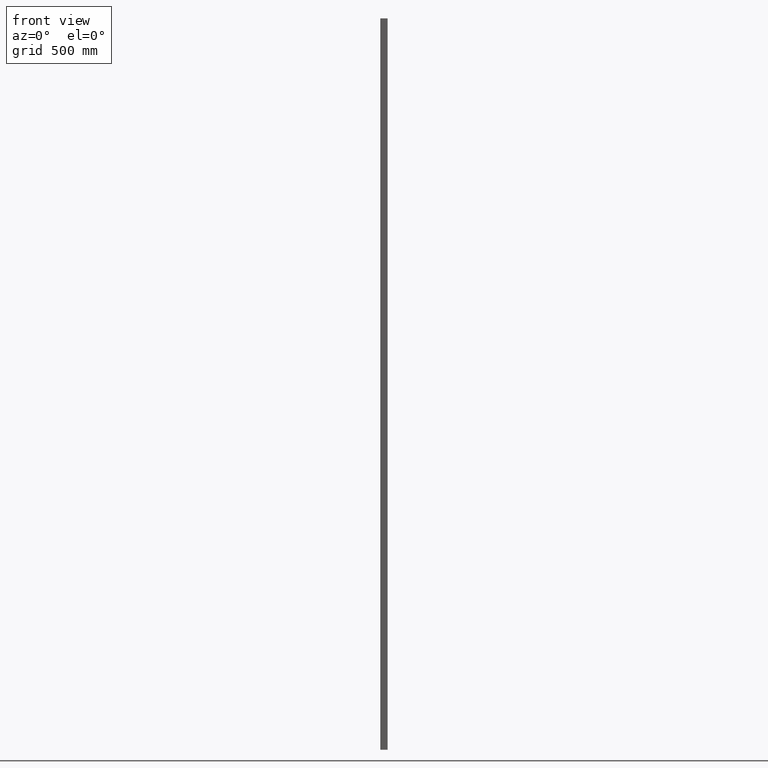
[diagram: clean part render]
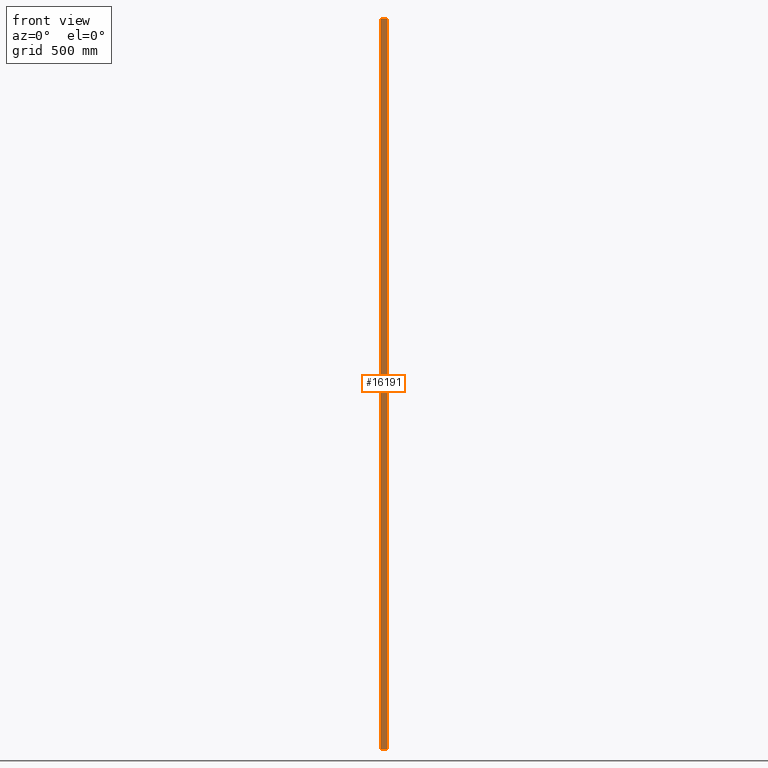
[diagram: same view with one face highlighted and labeled with its STEP entity id]
A machine part, front view. The second image highlights one B-rep face of the part: STEP entity #16191.
In plain terms, the highlighted planar face has unit normal (0, 1, 0).
Its self-contained STEP definition (entity closure, byte-faithful):
#397 = CARTESIAN_POINT ( 'NONE',  ( 11.99999999999998934, -9.999999999999998224, 1500.000000000000000 ) ) ;
#1390 = ORIENTED_EDGE ( 'NONE', *, *, #13383, .T. ) ;
#1470 = DIRECTION ( 'NONE',  ( 1.000000000000000000, 0.000000000000000000, 0.000000000000000000 ) ) ;
#1897 = ORIENTED_EDGE ( 'NONE', *, *, #5551, .F. ) ;
#2742 = CARTESIAN_POINT ( 'NONE',  ( -12.00000000000001421, -10.00000000000000178, -1500.000000000000000 ) ) ;
#2744 = FACE_OUTER_BOUND ( 'NONE', #5340, .T. ) ;
#2779 = CARTESIAN_POINT ( 'NONE',  ( -12.00000000000001421, -10.00000000000000178, 1500.000000000000000 ) ) ;
#2973 = VECTOR ( 'NONE', #7110, 1000.000000000000000 ) ;
#3150 = CARTESIAN_POINT ( 'NONE',  ( 11.99999999999998934, -9.999999999999998224, -1500.000000000000000 ) ) ;
#3447 = CARTESIAN_POINT ( 'NONE',  ( -12.00000000000001421, -10.00000000000000178, -1500.000000000000000 ) ) ;
#4073 = DIRECTION ( 'NONE',  ( 1.000000000000000000, 0.000000000000000000, 0.000000000000000000 ) ) ;
#5170 = VERTEX_POINT ( 'NONE', #3447 ) ;
#5189 = VERTEX_POINT ( 'NONE', #3150 ) ;
#5321 = CARTESIAN_POINT ( 'NONE',  ( -12.00000000000001421, -10.00000000000000178, 1500.000000000000000 ) ) ;
#5340 = EDGE_LOOP ( 'NONE', ( #5378, #6971, #1897, #1390 ) ) ;
#5378 = ORIENTED_EDGE ( 'NONE', *, *, #9757, .T. ) ;
#5551 = EDGE_CURVE ( 'NONE', #10850, #6344, #9749, .T. ) ;
#5994 = VECTOR ( 'NONE', #1470, 1000.000000000000000 ) ;
#6344 = VERTEX_POINT ( 'NONE', #10993 ) ;
#6971 = ORIENTED_EDGE ( 'NONE', *, *, #13332, .F. ) ;
#7110 = DIRECTION ( 'NONE',  ( -0.000000000000000000, -0.000000000000000000, -1.000000000000000000 ) ) ;
#9749 = LINE ( 'NONE', #2779, #5994 ) ;
#9757 = EDGE_CURVE ( 'NONE', #5170, #5189, #10775, .T. ) ;
#10458 = DIRECTION ( 'NONE',  ( -0.000000000000000000, -0.000000000000000000, -1.000000000000000000 ) ) ;
#10741 = DIRECTION ( 'NONE',  ( 0.000000000000000000, -0.000000000000000000, 1.000000000000000000 ) ) ;
#10775 = LINE ( 'NONE', #2742, #14924 ) ;
#10788 = PLANE ( 'NONE',  #15142 ) ;
#10850 = VERTEX_POINT ( 'NONE', #5321 ) ;
#10993 = CARTESIAN_POINT ( 'NONE',  ( 11.99999999999998934, -9.999999999999998224, 1500.000000000000000 ) ) ;
#11692 = VECTOR ( 'NONE', #10458, 1000.000000000000000 ) ;
#11976 = CARTESIAN_POINT ( 'NONE',  ( -12.00000000000001421, -10.00000000000000178, 1500.000000000000000 ) ) ;
#12480 = LINE ( 'NONE', #11976, #2973 ) ;
#13332 = EDGE_CURVE ( 'NONE', #6344, #5189, #15249, .T. ) ;
#13368 = DIRECTION ( 'NONE',  ( 0.000000000000000000, 1.000000000000000000, 0.000000000000000000 ) ) ;
#13383 = EDGE_CURVE ( 'NONE', #10850, #5170, #12480, .T. ) ;
#14545 = CARTESIAN_POINT ( 'NONE',  ( -12.00000000000001421, -10.00000000000000178, 1500.000000000000000 ) ) ;
#14924 = VECTOR ( 'NONE', #4073, 1000.000000000000000 ) ;
#15142 = AXIS2_PLACEMENT_3D ( 'NONE', #14545, #13368, #10741 ) ;
#15249 = LINE ( 'NONE', #397, #11692 ) ;
#16191 = ADVANCED_FACE ( 'NONE', ( #2744 ), #10788, .F. ) ;